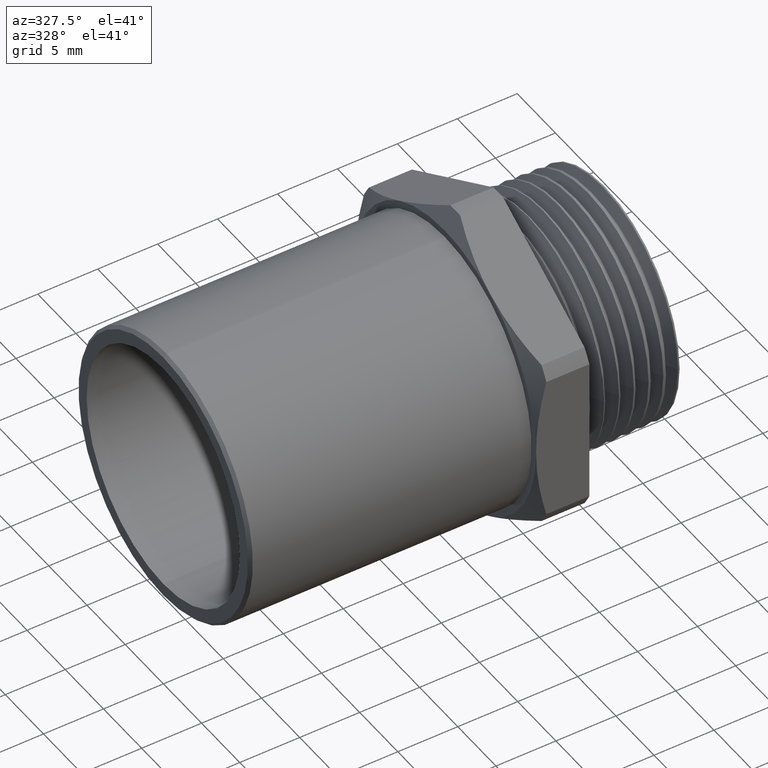
[diagram: clean part render]
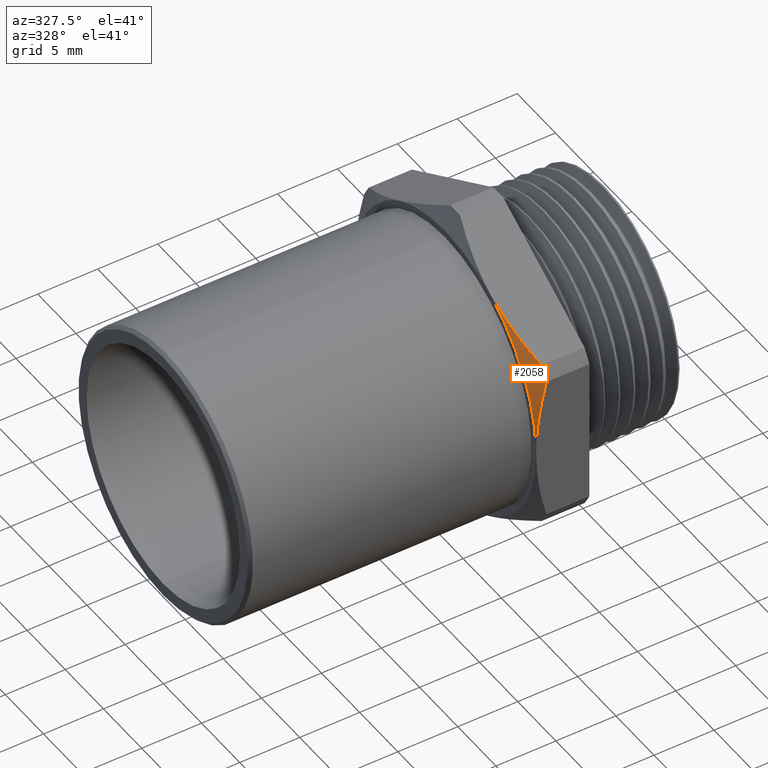
[diagram: same view with one face highlighted and labeled with its STEP entity id]
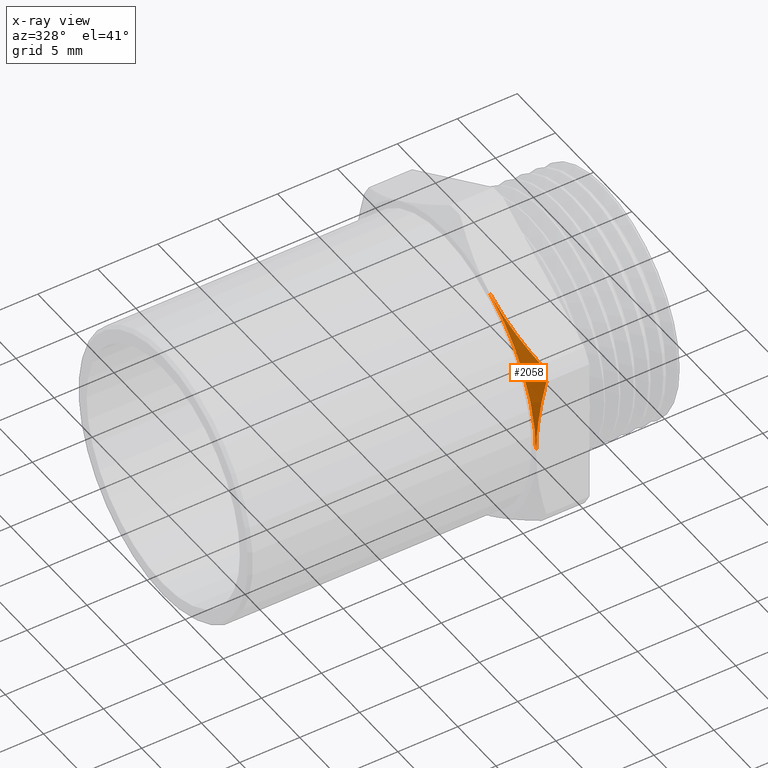
[diagram: x-ray of the same camera — body ghosted, the highlighted face saturated]
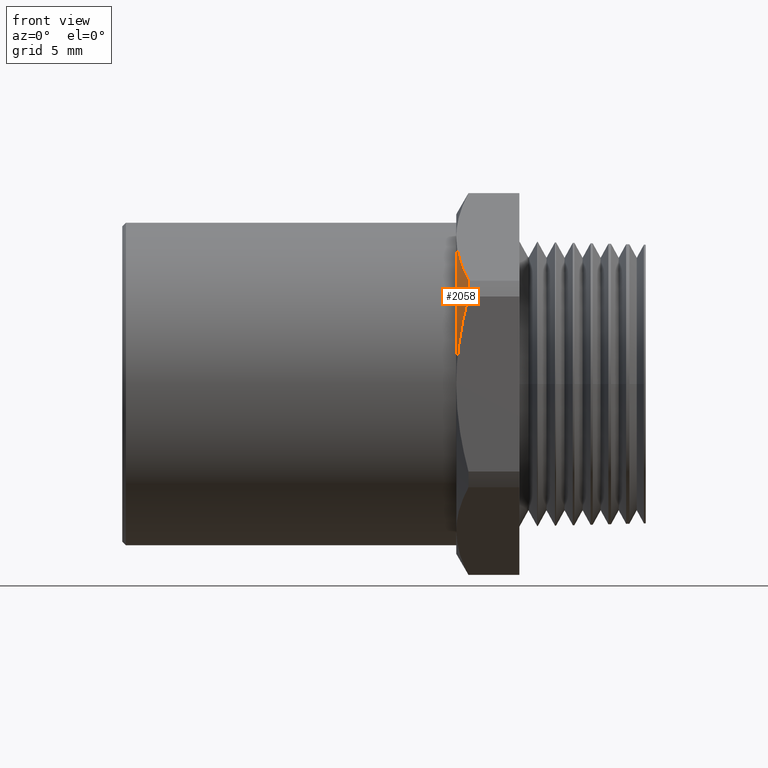
[diagram: same view with one face highlighted and labeled with its STEP entity id]
A machine part, auxiliary view. The second image highlights one B-rep face of the part: STEP entity #2058.
The next image is the same camera in x-ray: the body ghosted, the highlighted face saturated — about 0% of this face is hidden behind the body in this view.
A second angle (front view) of the same face is appended — the face is thin or edge-on in the first view.
In plain terms, the highlighted conical surface has half-angle 60 deg.
Its self-contained STEP definition (entity closure, byte-faithful):
#190 = EDGE_CURVE ( 'NONE', #191, #192, #706, .T. ) ;
#191 = VERTEX_POINT ( 'NONE', #759 ) ;
#192 = VERTEX_POINT ( 'NONE', #758 ) ;
#220 = VERTEX_POINT ( 'NONE', #833 ) ;
#222 = EDGE_CURVE ( 'NONE', #220, #223, #832, .T. ) ;
#223 = VERTEX_POINT ( 'NONE', #827 ) ;
#266 = EDGE_CURVE ( 'NONE', #220, #191, #916, .T. ) ;
#270 = EDGE_CURVE ( 'NONE', #192, #223, #903, .T. ) ;
#706 = CIRCLE ( 'NONE', #763, 0.5287499999999999400 ) ;
#758 = CARTESIAN_POINT ( 'NONE',  ( -0.4910806716851094900, -0.4447794600884462100, 0.2859157120261672800 ) ) ;
#759 = CARTESIAN_POINT ( 'NONE',  ( -0.4910806716851094900, -0.4700000000000002000, 0.2422324555050370500 ) ) ;
#760 = DIRECTION ( 'NONE',  ( 0.0000000000000000000, 0.0000000000000000000, -1.000000000000000000 ) ) ;
#761 = DIRECTION ( 'NONE',  ( -1.000000000000000000, 0.0000000000000000000, 0.0000000000000000000 ) ) ;
#762 = CARTESIAN_POINT ( 'NONE',  ( -0.4910806716851094900, 0.0000000000000000000, 0.0000000000000000000 ) ) ;
#763 = AXIS2_PLACEMENT_3D ( 'NONE', #762, #761, #760 ) ;
#827 = CARTESIAN_POINT ( 'NONE',  ( -0.5249999999999999100, -0.2350000000000000400, 0.4070319397786862400 ) ) ;
#828 = DIRECTION ( 'NONE',  ( 0.0000000000000000000, 0.0000000000000000000, 1.000000000000000000 ) ) ;
#829 = DIRECTION ( 'NONE',  ( -1.000000000000000000, 0.0000000000000000000, 0.0000000000000000000 ) ) ;
#830 = CARTESIAN_POINT ( 'NONE',  ( -0.5249999999999999100, 0.0000000000000000000, 0.0000000000000000000 ) ) ;
#831 = AXIS2_PLACEMENT_3D ( 'NONE', #830, #829, #828 ) ;
#832 = CIRCLE ( 'NONE', #831, 0.4699999999999999200 ) ;
#833 = CARTESIAN_POINT ( 'NONE',  ( -0.5249999999999999100, -0.4700000000000002500, 0.0000000000000000000 ) ) ;
#895 = CARTESIAN_POINT ( 'NONE',  ( -0.5249999999999999100, -0.2350000000000000400, 0.4070319397786862400 ) ) ;
#896 = CARTESIAN_POINT ( 'NONE',  ( -0.5249999999999999100, -0.2705283827767446800, 0.3865196184186605600 ) ) ;
#897 = CARTESIAN_POINT ( 'NONE',  ( -0.5218566174881363900, -0.3057425288952003200, 0.3661887216778872400 ) ) ;
#898 = CARTESIAN_POINT ( 'NONE',  ( -0.5101475928006913300, -0.3756287704110581300, 0.3258398813260555700 ) ) ;
#899 = CARTESIAN_POINT ( 'NONE',  ( -0.5016101000902005700, -0.4103036798451895100, 0.3058203130301337900 ) ) ;
#900 = CARTESIAN_POINT ( 'NONE',  ( -0.4910806716851094900, -0.4447794600884462100, 0.2859157120261672800 ) ) ;
#903 = B_SPLINE_CURVE_WITH_KNOTS ( 'NONE', 3,
 ( #900, #899, #898, #897, #896, #895 ),
 .UNSPECIFIED., .F., .F.,
 ( 4, 2, 4 ),
 ( 2.364212843832120500E-007, 0.003105692998414943300, 0.006211149575545503600 ),
 .UNSPECIFIED. ) ;
#906 = CARTESIAN_POINT ( 'NONE',  ( -0.4910806716851094900, -0.4700000000000002000, 0.2422324555050370500 ) ) ;
#907 = CARTESIAN_POINT ( 'NONE',  ( -0.5014694581922564100, -0.4700000000000002500, 0.2029549862284599800 ) ) ;
#908 = CARTESIAN_POINT ( 'NONE',  ( -0.5100072812899326700, -0.4700000000000000800, 0.1631624035164036800 ) ) ;
#909 = CARTESIAN_POINT ( 'NONE',  ( -0.5188680914163583700, -0.4700000000000002000, 0.1023753992933501400 ) ) ;
#910 = CARTESIAN_POINT ( 'NONE',  ( -0.5211666293062978700, -0.4700000000000002000, 0.08184438670254323700 ) ) ;
#911 = CARTESIAN_POINT ( 'NONE',  ( -0.5242302087654922000, -0.4700000000000002000, 0.04084480894746866900 ) ) ;
#912 = CARTESIAN_POINT ( 'NONE',  ( -0.5249999999999996900, -0.4700000000000002500, 0.02039643440592518400 ) ) ;
#913 = CARTESIAN_POINT ( 'NONE',  ( -0.5249999999999999100, -0.4700000000000002500, 0.0000000000000000000 ) ) ;
#916 = B_SPLINE_CURVE_WITH_KNOTS ( 'NONE', 3,
 ( #913, #912, #911, #910, #909, #908, #907, #906 ),
 .UNSPECIFIED., .F., .F.,
 ( 4, 2, 2, 4 ),
 ( 0.01899664990411453800, 0.02054773176841896000, 0.02209881363272338600, 0.02520097736133223400 ),
 .UNSPECIFIED. ) ;
#1274 = DIRECTION ( 'NONE',  ( 0.0000000000000000000, 0.0000000000000000000, 1.000000000000000000 ) ) ;
#1275 = DIRECTION ( 'NONE',  ( 1.000000000000000000, 0.0000000000000000000, 0.0000000000000000000 ) ) ;
#1276 = CARTESIAN_POINT ( 'NONE',  ( -0.5249999999999999100, 0.0000000000000000000, 0.0000000000000000000 ) ) ;
#1277 = AXIS2_PLACEMENT_3D ( 'NONE', #1276, #1275, #1274 ) ;
#1279 = CONICAL_SURFACE ( 'NONE', #1277, 0.4699999999999999200, 1.047197551196600100 ) ;
#1283 = FACE_OUTER_BOUND ( 'NONE', #2056, .T. ) ;
#2056 = EDGE_LOOP ( 'NONE', ( #2062, #2061, #2130, #2132 ) ) ;
#2058 = ADVANCED_FACE ( 'NONE', ( #1283 ), #1279, .T. ) ;
#2061 = ORIENTED_EDGE ( 'NONE', *, *, #190, .T. ) ;
#2062 = ORIENTED_EDGE ( 'NONE', *, *, #266, .T. ) ;
#2130 = ORIENTED_EDGE ( 'NONE', *, *, #270, .T. ) ;
#2132 = ORIENTED_EDGE ( 'NONE', *, *, #222, .F. ) ;